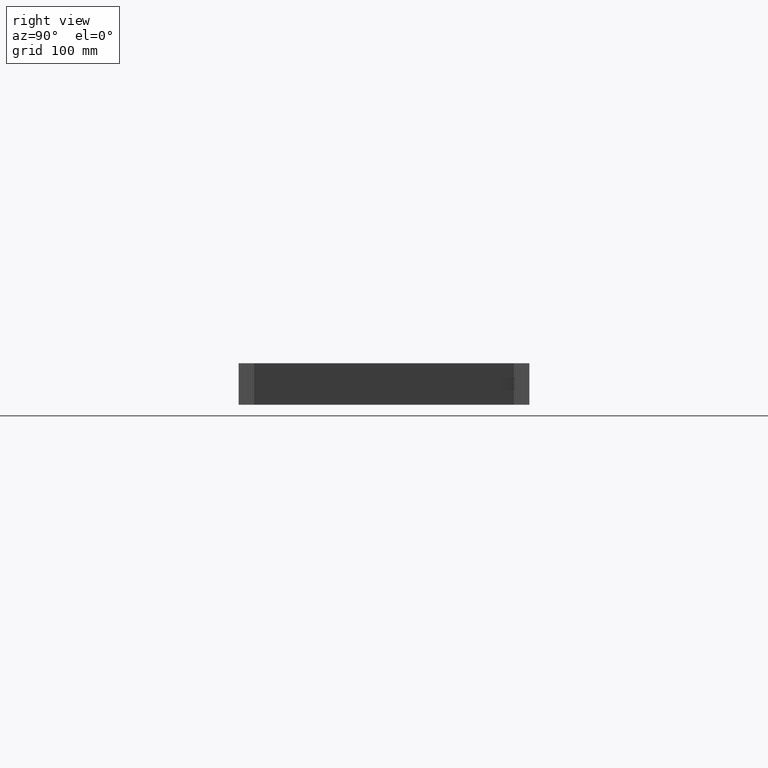
[diagram: clean part render]
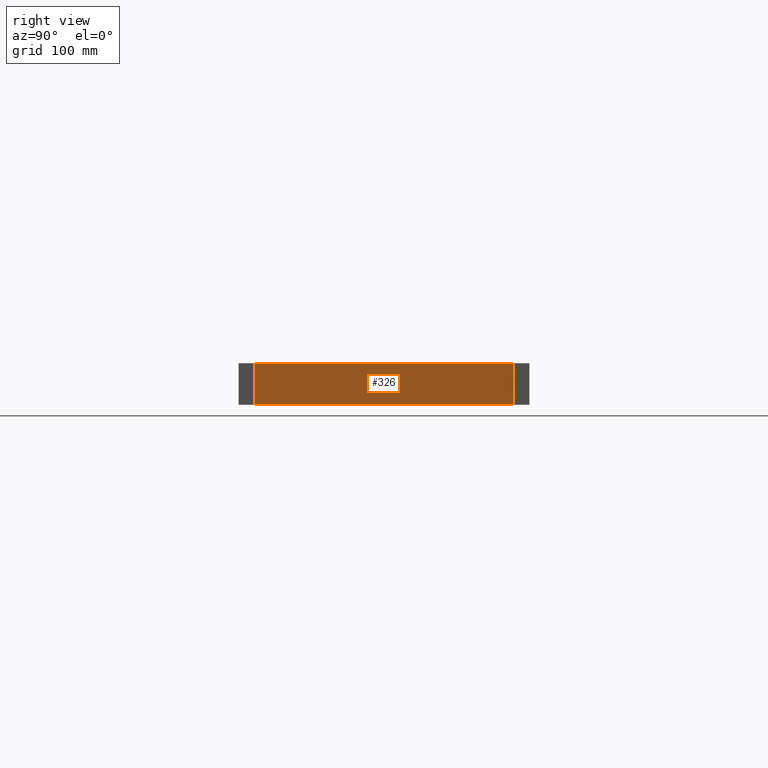
[diagram: same view with one face highlighted and labeled with its STEP entity id]
A machine part, right view. The second image highlights one B-rep face of the part: STEP entity #326.
In plain terms, the highlighted planar face has unit normal (0.9524, 0.3048, 0).
Its self-contained STEP definition (entity closure, byte-faithful):
#20=FACE_OUTER_BOUND($,#37,.T.);
#37=EDGE_LOOP($,(#240,#241,#242,#243));
#68=LINE($,#482,#113);
#69=LINE($,#485,#114);
#70=LINE($,#487,#115);
#71=LINE($,#488,#116);
#113=VECTOR($,#393,40.);
#114=VECTOR($,#396,262.488094968134);
#115=VECTOR($,#397,262.488094968134);
#116=VECTOR($,#398,40.);
#151=VERTEX_POINT($,#478);
#152=VERTEX_POINT($,#480);
#153=VERTEX_POINT($,#484);
#154=VERTEX_POINT($,#486);
#188=EDGE_CURVE($,#151,#152,#68,.T.);
#189=EDGE_CURVE($,#151,#153,#69,.T.);
#190=EDGE_CURVE($,#154,#152,#70,.T.);
#191=EDGE_CURVE($,#153,#154,#71,.T.);
#240=ORIENTED_EDGE($,*,*,#189,.F.);
#241=ORIENTED_EDGE($,*,*,#188,.T.);
#242=ORIENTED_EDGE($,*,*,#190,.F.);
#243=ORIENTED_EDGE($,*,*,#191,.F.);
#309=PLANE($,#346);
#326=ADVANCED_FACE($,(#20),#309,.T.);
#346=AXIS2_PLACEMENT_3D($,#483,#394,#395);
#393=DIRECTION($,(0.,0.,1.));
#394=DIRECTION('center_axis',(0.952424147199324,0.304775727103784,0.));
#395=DIRECTION('ref_axis',(-0.304775727103783,0.952424147199325,0.));
#396=DIRECTION($,(0.304775727103784,-0.952424147199324,0.));
#397=DIRECTION($,(-0.304775727103784,0.952424147199324,0.));
#398=DIRECTION($,(0.,0.,1.));
#478=CARTESIAN_POINT('',(385.968855668604,104.653979238754,0.));
#480=CARTESIAN_POINT('',(385.968855668604,104.653979238754,40.));
#482=CARTESIAN_POINT($,(385.968855668604,104.653979238754,0.));
#483=CARTESIAN_POINT('Origin',(465.968855668604,-145.346020761246,0.));
#484=CARTESIAN_POINT('',(465.968855668604,-145.346020761246,0.));
#485=CARTESIAN_POINT($,(385.968855668604,104.653979238754,0.));
#486=CARTESIAN_POINT('',(465.968855668604,-145.346020761246,40.));
#487=CARTESIAN_POINT($,(385.968855668604,104.653979238754,40.));
#488=CARTESIAN_POINT($,(465.968855668604,-145.346020761246,0.));